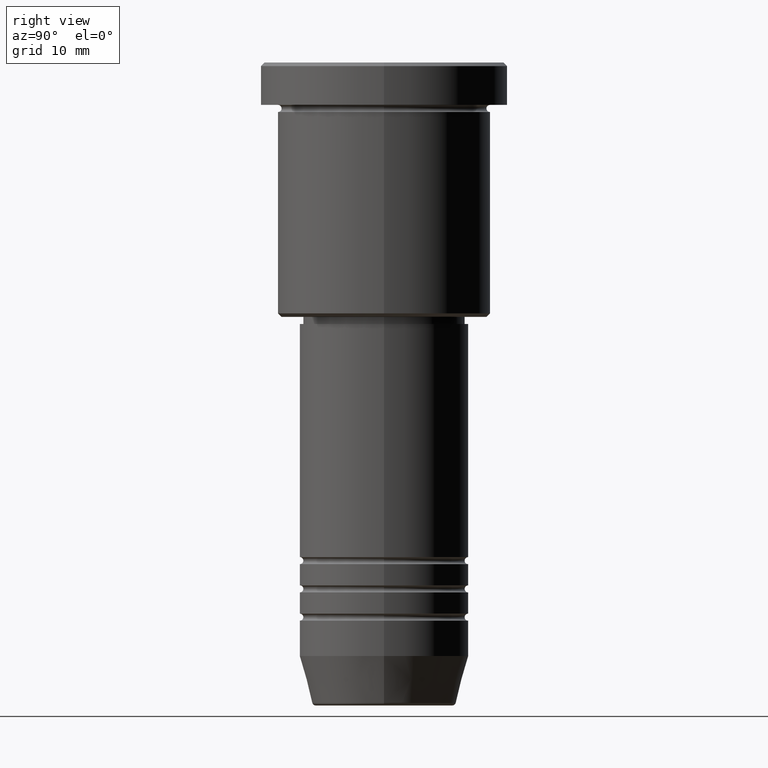
[diagram: clean part render]
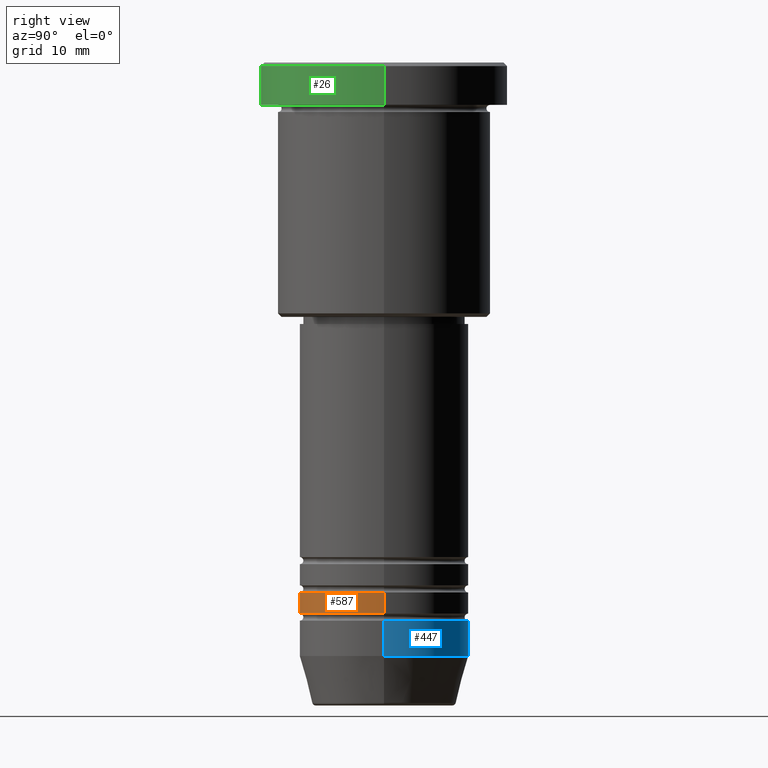
[diagram: same view with three faces highlighted in distinct colors, each labeled with its STEP entity id]
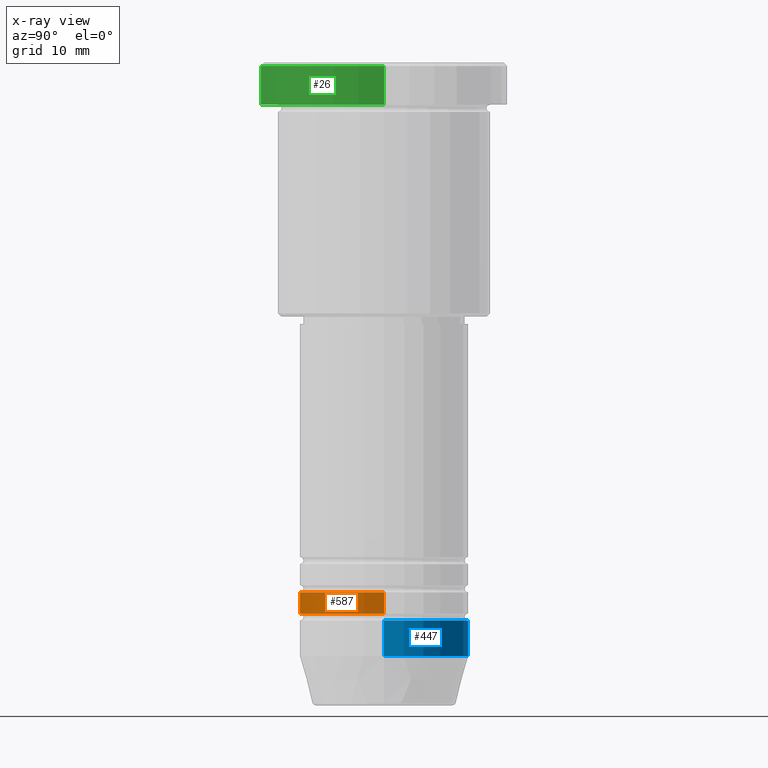
[diagram: x-ray of the same camera — body ghosted, the three highlighted faces saturated]
A machine part, right view with three faces highlighted in distinct colors.
The next image is the same camera in x-ray (body ghosted, the three faces saturated) — at least one of them is partly hidden behind the body in this view.
Their STEP definitions:

[orange] entity #587 — the highlighted cylindrical surface (partial cylindrical patch) has radius 12 mm, axis along (-0, -0, 1).
#20 = VERTEX_POINT ( 'NONE', #106 ) ;
#52 = VERTEX_POINT ( 'NONE', #472 ) ;
#106 = CARTESIAN_POINT ( 'NONE',  ( -12.00000000000000000, 1.469576158976823947E-15, -77.99999999999987210 ) ) ;
#110 = ORIENTED_EDGE ( 'NONE', *, *, #161, .F. ) ;
#161 = EDGE_CURVE ( 'NONE', #20, #774, #1049, .T. ) ;
#174 = CIRCLE ( 'NONE', #799, 12.00000000000000000 ) ;
#238 = CARTESIAN_POINT ( 'NONE',  ( -12.00000000000000000, 1.469576158976823947E-15, 0.000000000000000000 ) ) ;
#342 = CARTESIAN_POINT ( 'NONE',  ( 12.00000000000000000, 0.000000000000000000, -77.99999999999987210 ) ) ;
#401 = CARTESIAN_POINT ( 'NONE',  ( 0.000000000000000000, 0.000000000000000000, -77.99999999999987210 ) ) ;
#411 = ORIENTED_EDGE ( 'NONE', *, *, #924, .T. ) ;
#426 = AXIS2_PLACEMENT_3D ( 'NONE', #401, #866, #676 ) ;
#472 = CARTESIAN_POINT ( 'NONE',  ( 12.00000000000000000, 0.000000000000000000, -74.99999999999987210 ) ) ;
#485 = FACE_OUTER_BOUND ( 'NONE', #556, .T. ) ;
#491 = DIRECTION ( 'NONE',  ( 1.000000000000000000, 0.000000000000000000, 0.000000000000000000 ) ) ;
#517 = CIRCLE ( 'NONE', #426, 12.00000000000000000 ) ;
#530 = LINE ( 'NONE', #1080, #912 ) ;
#556 = EDGE_LOOP ( 'NONE', ( #110, #411, #896, #1131 ) ) ;
#587 = ADVANCED_FACE ( 'NONE', ( #485 ), #604, .T. ) ;
#590 = DIRECTION ( 'NONE',  ( -0.000000000000000000, -0.000000000000000000, 1.000000000000000000 ) ) ;
#592 = EDGE_CURVE ( 'NONE', #774, #52, #174, .T. ) ;
#604 = CYLINDRICAL_SURFACE ( 'NONE', #1010, 12.00000000000000000 ) ;
#614 = VECTOR ( 'NONE', #958, 1000.000000000000000 ) ;
#676 = DIRECTION ( 'NONE',  ( 1.000000000000000000, 0.000000000000000000, 0.000000000000000000 ) ) ;
#774 = VERTEX_POINT ( 'NONE', #1031 ) ;
#799 = AXIS2_PLACEMENT_3D ( 'NONE', #1036, #590, #491 ) ;
#838 = CARTESIAN_POINT ( 'NONE',  ( 0.000000000000000000, 0.000000000000000000, 0.000000000000000000 ) ) ;
#843 = DIRECTION ( 'NONE',  ( -0.000000000000000000, -0.000000000000000000, 1.000000000000000000 ) ) ;
#866 = DIRECTION ( 'NONE',  ( -0.000000000000000000, -0.000000000000000000, 1.000000000000000000 ) ) ;
#896 = ORIENTED_EDGE ( 'NONE', *, *, #1092, .T. ) ;
#912 = VECTOR ( 'NONE', #995, 1000.000000000000000 ) ;
#924 = EDGE_CURVE ( 'NONE', #20, #1098, #517, .T. ) ;
#955 = DIRECTION ( 'NONE',  ( 1.000000000000000000, 0.000000000000000000, 0.000000000000000000 ) ) ;
#958 = DIRECTION ( 'NONE',  ( -0.000000000000000000, -0.000000000000000000, 1.000000000000000000 ) ) ;
#995 = DIRECTION ( 'NONE',  ( -0.000000000000000000, -0.000000000000000000, 1.000000000000000000 ) ) ;
#1010 = AXIS2_PLACEMENT_3D ( 'NONE', #838, #843, #955 ) ;
#1031 = CARTESIAN_POINT ( 'NONE',  ( -12.00000000000000000, 1.469576158976823947E-15, -74.99999999999987210 ) ) ;
#1036 = CARTESIAN_POINT ( 'NONE',  ( 0.000000000000000000, 0.000000000000000000, -74.99999999999987210 ) ) ;
#1049 = LINE ( 'NONE', #238, #614 ) ;
#1080 = CARTESIAN_POINT ( 'NONE',  ( 12.00000000000000000, 0.000000000000000000, 0.000000000000000000 ) ) ;
#1092 = EDGE_CURVE ( 'NONE', #1098, #52, #530, .T. ) ;
#1098 = VERTEX_POINT ( 'NONE', #342 ) ;
#1131 = ORIENTED_EDGE ( 'NONE', *, *, #592, .F. ) ;

[blue] entity #447 — the highlighted cylindrical surface (partial cylindrical patch) has radius 12 mm, axis along (-0, -0, 1).
#4 = VECTOR ( 'NONE', #1058, 1000.000000000000000 ) ;
#47 = CARTESIAN_POINT ( 'NONE',  ( 0.000000000000000000, 0.000000000000000000, -78.99999999999998579 ) ) ;
#53 = EDGE_CURVE ( 'NONE', #796, #596, #860, .T. ) ;
#105 = CARTESIAN_POINT ( 'NONE',  ( -12.00000000000000000, 1.469576158976823947E-15, -78.99999999999998579 ) ) ;
#145 = DIRECTION ( 'NONE',  ( -0.000000000000000000, -0.000000000000000000, 1.000000000000000000 ) ) ;
#159 = DIRECTION ( 'NONE',  ( 1.000000000000000000, 0.000000000000000000, 0.000000000000000000 ) ) ;
#211 = CIRCLE ( 'NONE', #797, 12.00000000000000000 ) ;
#227 = DIRECTION ( 'NONE',  ( -0.000000000000000000, -0.000000000000000000, 1.000000000000000000 ) ) ;
#266 = CYLINDRICAL_SURFACE ( 'NONE', #574, 12.00000000000000000 ) ;
#277 = EDGE_CURVE ( 'NONE', #796, #1174, #211, .T. ) ;
#280 = CARTESIAN_POINT ( 'NONE',  ( -12.00000000000000000, 1.469576158976823947E-15, -83.99999999999998579 ) ) ;
#377 = EDGE_CURVE ( 'NONE', #1174, #768, #1046, .T. ) ;
#441 = CARTESIAN_POINT ( 'NONE',  ( 0.000000000000000000, 0.000000000000000000, 0.000000000000000000 ) ) ;
#447 = ADVANCED_FACE ( 'NONE', ( #1071 ), #266, .T. ) ;
#477 = CIRCLE ( 'NONE', #1109, 12.00000000000000000 ) ;
#503 = CARTESIAN_POINT ( 'NONE',  ( 12.00000000000000000, 0.000000000000000000, 0.000000000000000000 ) ) ;
#574 = AXIS2_PLACEMENT_3D ( 'NONE', #441, #745, #1164 ) ;
#586 = CARTESIAN_POINT ( 'NONE',  ( 0.000000000000000000, 0.000000000000000000, -83.99999999999998579 ) ) ;
#596 = VERTEX_POINT ( 'NONE', #849 ) ;
#600 = DIRECTION ( 'NONE',  ( 1.000000000000000000, 0.000000000000000000, 0.000000000000000000 ) ) ;
#610 = EDGE_CURVE ( 'NONE', #596, #768, #477, .T. ) ;
#620 = CARTESIAN_POINT ( 'NONE',  ( 12.00000000000000000, 0.000000000000000000, -83.99999999999998579 ) ) ;
#706 = DIRECTION ( 'NONE',  ( -0.000000000000000000, -0.000000000000000000, 1.000000000000000000 ) ) ;
#745 = DIRECTION ( 'NONE',  ( -0.000000000000000000, -0.000000000000000000, 1.000000000000000000 ) ) ;
#752 = ORIENTED_EDGE ( 'NONE', *, *, #610, .F. ) ;
#768 = VERTEX_POINT ( 'NONE', #105 ) ;
#796 = VERTEX_POINT ( 'NONE', #620 ) ;
#797 = AXIS2_PLACEMENT_3D ( 'NONE', #586, #227, #600 ) ;
#849 = CARTESIAN_POINT ( 'NONE',  ( 12.00000000000000000, 0.000000000000000000, -78.99999999999998579 ) ) ;
#860 = LINE ( 'NONE', #503, #1064 ) ;
#1044 = ORIENTED_EDGE ( 'NONE', *, *, #277, .T. ) ;
#1046 = LINE ( 'NONE', #1141, #4 ) ;
#1058 = DIRECTION ( 'NONE',  ( -0.000000000000000000, -0.000000000000000000, 1.000000000000000000 ) ) ;
#1064 = VECTOR ( 'NONE', #706, 1000.000000000000000 ) ;
#1071 = FACE_OUTER_BOUND ( 'NONE', #1114, .T. ) ;
#1109 = AXIS2_PLACEMENT_3D ( 'NONE', #47, #145, #159 ) ;
#1114 = EDGE_LOOP ( 'NONE', ( #1044, #1168, #752, #1162 ) ) ;
#1141 = CARTESIAN_POINT ( 'NONE',  ( -12.00000000000000000, 1.469576158976823947E-15, 0.000000000000000000 ) ) ;
#1162 = ORIENTED_EDGE ( 'NONE', *, *, #53, .F. ) ;
#1164 = DIRECTION ( 'NONE',  ( 1.000000000000000000, 0.000000000000000000, 0.000000000000000000 ) ) ;
#1168 = ORIENTED_EDGE ( 'NONE', *, *, #377, .T. ) ;
#1174 = VERTEX_POINT ( 'NONE', #280 ) ;

[green] entity #26 — the highlighted cylindrical surface (partial cylindrical patch) has radius 17.5 mm, axis along (-0, -0, 1).
#22 = CARTESIAN_POINT ( 'NONE',  ( -17.50000000000000000, 2.143131898507868248E-15, 0.000000000000000000 ) ) ;
#26 = ADVANCED_FACE ( 'NONE', ( #674 ), #1122, .T. ) ;
#36 = DIRECTION ( 'NONE',  ( -0.000000000000000000, -0.000000000000000000, 1.000000000000000000 ) ) ;
#48 = CARTESIAN_POINT ( 'NONE',  ( 0.000000000000000000, 0.000000000000000000, -5.999999999999995559 ) ) ;
#64 = VECTOR ( 'NONE', #702, 1000.000000000000000 ) ;
#184 = CARTESIAN_POINT ( 'NONE',  ( 17.50000000000000000, 0.000000000000000000, -0.5000000000000142109 ) ) ;
#223 = DIRECTION ( 'NONE',  ( 0.000000000000000000, 0.000000000000000000, -1.000000000000000000 ) ) ;
#233 = CIRCLE ( 'NONE', #656, 17.50000000000000000 ) ;
#349 = EDGE_CURVE ( 'NONE', #977, #1124, #440, .T. ) ;
#432 = DIRECTION ( 'NONE',  ( -0.000000000000000000, -0.000000000000000000, 1.000000000000000000 ) ) ;
#440 = CIRCLE ( 'NONE', #1108, 17.50000000000000000 ) ;
#504 = LINE ( 'NONE', #861, #64 ) ;
#510 = EDGE_CURVE ( 'NONE', #977, #717, #806, .T. ) ;
#572 = AXIS2_PLACEMENT_3D ( 'NONE', #847, #36, #1130 ) ;
#575 = VECTOR ( 'NONE', #1022, 1000.000000000000000 ) ;
#582 = ORIENTED_EDGE ( 'NONE', *, *, #510, .F. ) ;
#643 = CARTESIAN_POINT ( 'NONE',  ( 17.50000000000000000, 0.000000000000000000, -5.999999999999995559 ) ) ;
#656 = AXIS2_PLACEMENT_3D ( 'NONE', #1037, #223, #1110 ) ;
#674 = FACE_OUTER_BOUND ( 'NONE', #981, .T. ) ;
#702 = DIRECTION ( 'NONE',  ( -0.000000000000000000, -0.000000000000000000, 1.000000000000000000 ) ) ;
#717 = VERTEX_POINT ( 'NONE', #742 ) ;
#730 = EDGE_CURVE ( 'NONE', #1040, #717, #233, .T. ) ;
#742 = CARTESIAN_POINT ( 'NONE',  ( -17.50000000000000000, 2.143131898507868248E-15, -0.5000000000000142109 ) ) ;
#806 = LINE ( 'NONE', #22, #575 ) ;
#837 = ORIENTED_EDGE ( 'NONE', *, *, #349, .T. ) ;
#847 = CARTESIAN_POINT ( 'NONE',  ( 0.000000000000000000, 0.000000000000000000, 0.000000000000000000 ) ) ;
#861 = CARTESIAN_POINT ( 'NONE',  ( 17.50000000000000000, 0.000000000000000000, 0.000000000000000000 ) ) ;
#882 = DIRECTION ( 'NONE',  ( 1.000000000000000000, 0.000000000000000000, 0.000000000000000000 ) ) ;
#934 = ORIENTED_EDGE ( 'NONE', *, *, #952, .T. ) ;
#952 = EDGE_CURVE ( 'NONE', #1124, #1040, #504, .T. ) ;
#977 = VERTEX_POINT ( 'NONE', #1144 ) ;
#981 = EDGE_LOOP ( 'NONE', ( #582, #837, #934, #1121 ) ) ;
#1022 = DIRECTION ( 'NONE',  ( -0.000000000000000000, -0.000000000000000000, 1.000000000000000000 ) ) ;
#1037 = CARTESIAN_POINT ( 'NONE',  ( 0.000000000000000000, 0.000000000000000000, -0.5000000000000142109 ) ) ;
#1040 = VERTEX_POINT ( 'NONE', #184 ) ;
#1108 = AXIS2_PLACEMENT_3D ( 'NONE', #48, #432, #882 ) ;
#1110 = DIRECTION ( 'NONE',  ( 1.000000000000000000, 0.000000000000000000, 0.000000000000000000 ) ) ;
#1121 = ORIENTED_EDGE ( 'NONE', *, *, #730, .T. ) ;
#1122 = CYLINDRICAL_SURFACE ( 'NONE', #572, 17.50000000000000000 ) ;
#1124 = VERTEX_POINT ( 'NONE', #643 ) ;
#1130 = DIRECTION ( 'NONE',  ( 1.000000000000000000, 0.000000000000000000, 0.000000000000000000 ) ) ;
#1144 = CARTESIAN_POINT ( 'NONE',  ( -17.50000000000000000, 2.143131898507868248E-15, -5.999999999999995559 ) ) ;